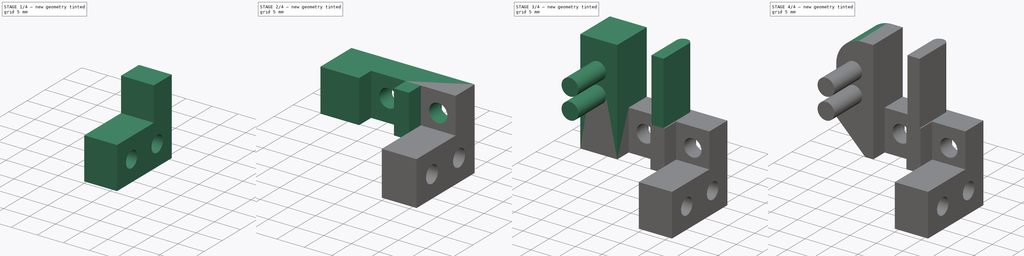
[diagram: build sequence overview — one tinted view per stage of 4, left to right]
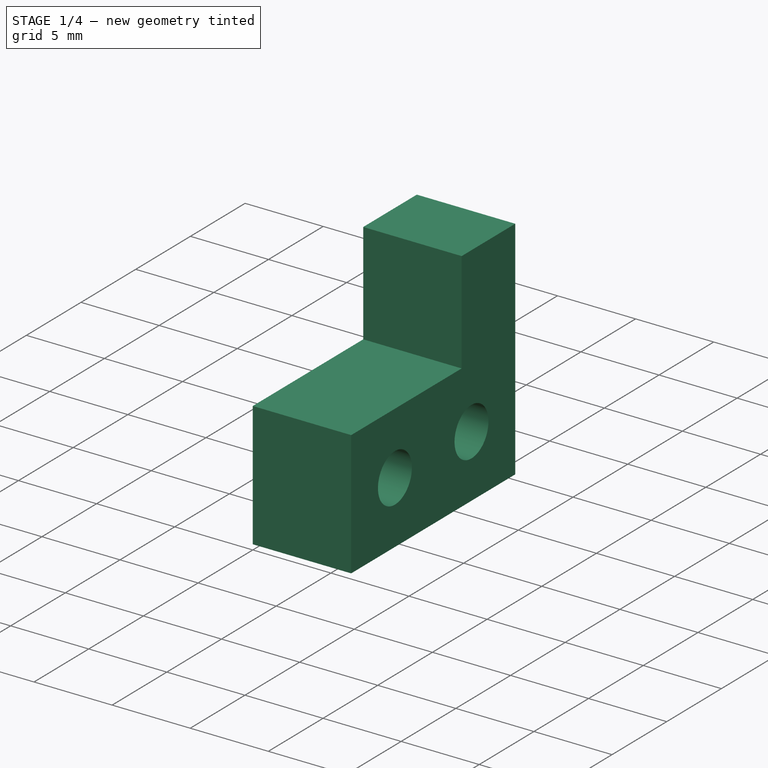
[diagram: stage 1 of 4 — iso view after this stage's code; geometry added in this stage tinted green]
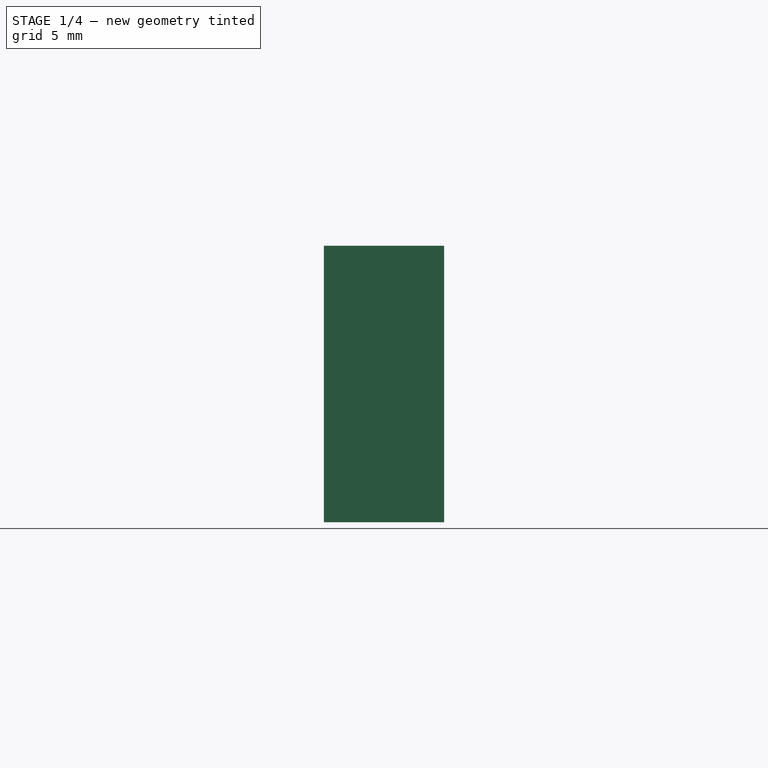
[diagram: stage 1 of 4 — front view after this stage's code; geometry added in this stage tinted green]
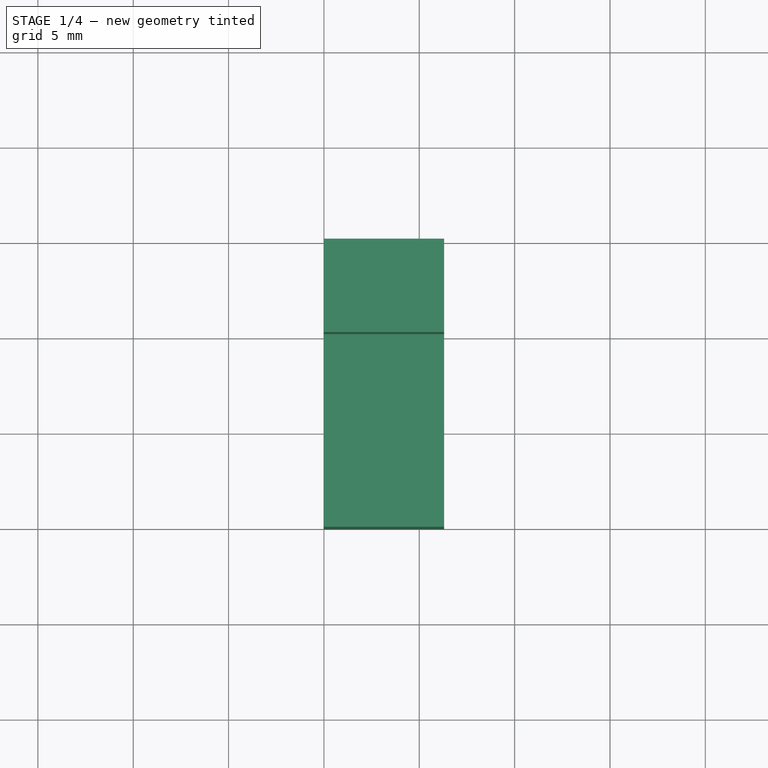
[diagram: stage 1 of 4 — top view after this stage's code; geometry added in this stage tinted green]
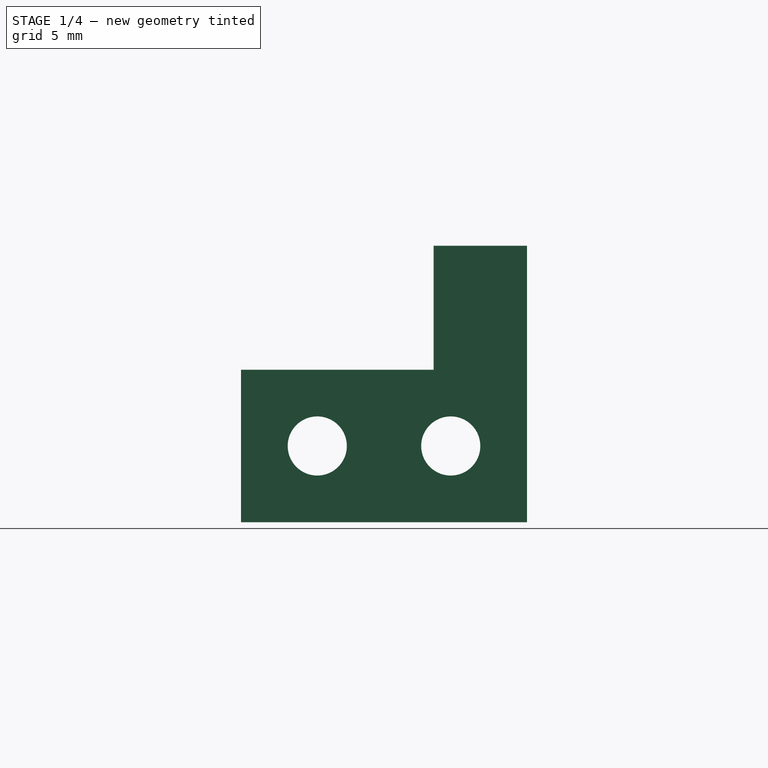
[diagram: stage 1 of 4 — right view after this stage's code; geometry added in this stage tinted green]
FCSTD DOCUMENT  (FreeCAD 0.19R24291 (Git))
Label: ri_sensor-support03
License: All rights reserved
LicenseURL: http://en.wikipedia.org/wiki/All_rights_reserved
objects: Sketcher::SketchObject×8, PartDesign::Pad×5, PartDesign::Pocket×3, PartDesign::Fillet×1, PartDesign::Chamfer×1, PartDesign::Body×1, App::Part×1
note: 29 computed .brp shape members not serialized (recipe doc carries the construction recipe); baked Part::Feature solids carry a one-line shape summary decoded from their .brp

FEATURE [Sketcher::SketchObject] Sketch  label="Baseplate-Sensor1"
  FullyConstrained = true
  MapMode = 5
  Placement = pos=(0,0,0) rot=(0.57735,0.57735,0.57735;2.0944rad)
  Support = -> [YZ_Plane001]
  expr: Constraints[12] = 8 - 3.1
  sketch-geometry (11):
    g0: LineSegment StartX=-4.9 StartY=-4.5 StartZ=0 EndX=0 EndY=-4.5 EndZ=0
    g1: LineSegment StartX=0 StartY=-4.5 StartZ=0 EndX=0 EndY=-19 EndZ=0
    g2: LineSegment StartX=0 StartY=-19 StartZ=0 EndX=-15 EndY=-19 EndZ=0
    g3: LineSegment StartX=-15 StartY=-19 StartZ=0 EndX=-15 EndY=-11 EndZ=0
    g4: LineSegment StartX=-15 StartY=-11 StartZ=0 EndX=-4.9 EndY=-11 EndZ=0
    g5: LineSegment StartX=-4.9 StartY=-11 StartZ=0 EndX=-4.9 EndY=-4.5 EndZ=0
    g6: Circle CenterX=-11 CenterY=-15 CenterZ=0 NormalX=0 NormalY=0 NormalZ=1 AngleXU=0 Radius=1.55
    g7: Circle CenterX=-4 CenterY=-15 CenterZ=0 NormalX=0 NormalY=0 NormalZ=1 AngleXU=0 Radius=1.55
    g8: GeomPoint X=-7.5 Y=-15 Z=0
    g9: GeomPoint X=-15 Y=-15 Z=0
    g10: GeomPoint X=-7.5 Y=-19 Z=0
  constraints (27):
    c: Horizontal(g0)
    c: Coincident(g0,g1)
    c: Vertical(g1)
    c: Coincident(g1,g2)
    c: Horizontal(g2)
    c: Coincident(g2,g3)
    c: Vertical(g3)
    c: Coincident(g3,g4)
    c: Coincident(g4,g5)
    c: Coincident(g5,g0)
    c: Vertical(g5)
    c: Horizontal(g4)
    c: DistanceX(g0,g0) = 4.9
    c: DistanceX(g2,g2) = 15
    c: DistanceY(g3,g3) = 8
    c: Equal(g6,g7)
    c: Diameter(g7) = 3.1
    c: DistanceX(g6,g7) = 7
    c: Symmetric(g6,g7,g8)
    c: Symmetric(g3,g2,g9)
    c: Symmetric(g2,g1,g10)
    c: Horizontal(g6,g7)
    c: Horizontal(g8,g9)
    c: Vertical(g8,g10)
    c: DistanceY(g8,g-1) = 15
    c: Vertical(g0,g-1)
    c: DistanceY(g5,g5) = 6.5
FEATURE [PartDesign::Pad] Pad
  Direction = (1,1,1)
  Length = 6.3
  Length2 = 100
  Placement = pos=(0,0,0) rot=(0.57735,0.57735,0.57735;2.0944rad)
  Profile = -> Sketch
  Refine = true
  Type = 0
FEATURE [Sketcher::SketchObject] Sketch002  label="Baseplate_Nuts"
  ExternalGeometry = -> [Pad]
  FullyConstrained = true
  MapMode = 5
  Placement = pos=(4.3e-15,0,0) rot=(0.57735,0.57735,-0.57735;4.18879rad)
  Support = -> [Pad]
  sketch-geometry (8):
    g0: LineSegment StartX=-8.2 StartY=12.2 StartZ=0 EndX=-13.8 EndY=12.2 EndZ=0
    g1: LineSegment StartX=-13.8 StartY=12.2 StartZ=0 EndX=-13.8 EndY=17.8 EndZ=0
    g2: LineSegment StartX=-13.8 StartY=17.8 StartZ=0 EndX=-8.2 EndY=17.8 EndZ=0
    g3: LineSegment StartX=-8.2 StartY=17.8 StartZ=0 EndX=-8.2 EndY=12.2 EndZ=0
    g4: LineSegment StartX=-1.2 StartY=12.2 StartZ=0 EndX=-6.8 EndY=12.2 EndZ=0
    g5: LineSegment StartX=-6.8 StartY=12.2 StartZ=0 EndX=-6.8 EndY=17.8 EndZ=0
    g6: LineSegment StartX=-6.8 StartY=17.8 StartZ=0 EndX=-1.2 EndY=17.8 EndZ=0
    g7: LineSegment StartX=-1.2 StartY=17.8 StartZ=0 EndX=-1.2 EndY=12.2 EndZ=0
  constraints (22):
    c: Coincident(g0,g1)
    c: Coincident(g1,g2)
    c: Coincident(g2,g3)
    c: Coincident(g3,g0)
    c: Horizontal(g0)
    c: Horizontal(g2)
    c: Vertical(g1)
    c: Vertical(g3)
    c: Coincident(g4,g5)
    c: Coincident(g5,g6)
    c: Coincident(g6,g7)
    c: Coincident(g7,g4)
    c: Horizontal(g4)
    c: Horizontal(g6)
    c: Vertical(g5)
    c: Vertical(g7)
    c: Equal(g0,g3)
    c: Equal(g4,g7)
    c: Equal(g4,g0)
    c: Symmetric(g2,g0,g-4)
    c: Symmetric(g6,g4,g-3)
    c: DistanceX(g4,g4) = 5.6
FEATURE [Sketcher::SketchObject] Sketch001  label="Sensor_Mounts"
  ExternalGeometry = -> [Pad]
  FullyConstrained = true
  MapMode = 5
  Placement = pos=(1.7e-15,-2.5e-15,-4.5) rot=(0,0,-1;1.5708rad)
  Support = -> [Pad]
  sketch-geometry (10):
    g0: LineSegment StartX=0 StartY=0 StartZ=0 EndX=0 EndY=-16 EndZ=0
    g1: LineSegment StartX=0 StartY=-16 StartZ=0 EndX=8 EndY=-16 EndZ=0
    g2: LineSegment StartX=8 StartY=-16 StartZ=0 EndX=8 EndY=-9 EndZ=0
    g3: LineSegment StartX=8 StartY=-9 StartZ=0 EndX=4.9 EndY=-9 EndZ=0
    g4: LineSegment StartX=4.9 StartY=-9 StartZ=0 EndX=4.9 EndY=-2.7 EndZ=0
    g5: LineSegment StartX=4.9 StartY=-2.7 StartZ=0 EndX=8 EndY=-2.7 EndZ=0
    g6: LineSegment StartX=8 StartY=-2.7 StartZ=0 EndX=8 EndY=0 EndZ=0
    g7: LineSegment StartX=8 StartY=0 StartZ=0 EndX=0 EndY=0 EndZ=0
    g8: GeomPoint X=4.9 Y=3.15 Z=0
    g9: GeomPoint X=4.9 Y=-5.85 Z=0
  constraints (23):
    c: Coincident(g-1,g0)
    c: PointOnObject(g0,g-2)
    c: Coincident(g0,g1)
    c: Horizontal(g1)
    c: Coincident(g1,g2)
    c: Vertical(g2)
    c: Coincident(g2,g3)
    c: Horizontal(g3)
    c: Coincident(g3,g4)
    c: Coincident(g4,g5)
    c: Horizontal(g5)
    c: Coincident(g5,g6)
    c: PointOnObject(g6,g-1)
    c: Coincident(g6,g7)
    c: Coincident(g7,g0)
    c: Equal(g-4,g4)
    c: Tangent(g6,g2)
    c: Tangent(g4,g-4)
    c: DistanceY(g2,g2) = 7
    c: Symmetric(g-5,g-4,g8)
    c: Symmetric(g4,g3,g9)
    c: DistanceY(g9,g8) = 9
    c: DistanceX(g5,g5) = 3.1
FEATURE [PartDesign::Pocket] Pocket
  BaseFeature = -> Pad
  Length = 2
  Length2 = 100
  Placement = pos=(0,0,0) rot=(0.57735,0.57735,0.57735;2.0944rad)
  Profile = -> Sketch002
  Refine = true
  Type = 0
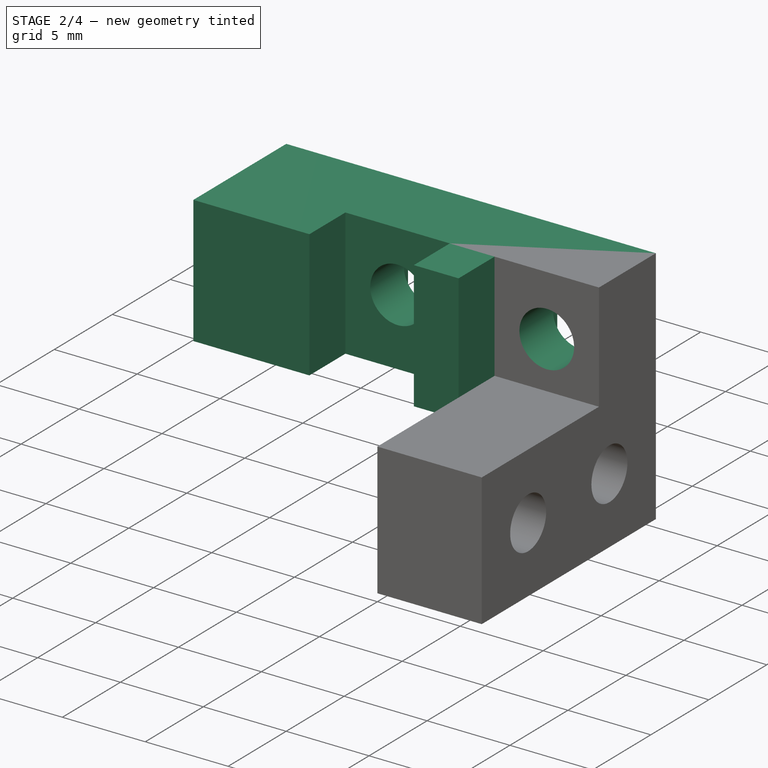
[diagram: stage 2 of 4 — iso view after this stage's code; geometry added in this stage tinted green]
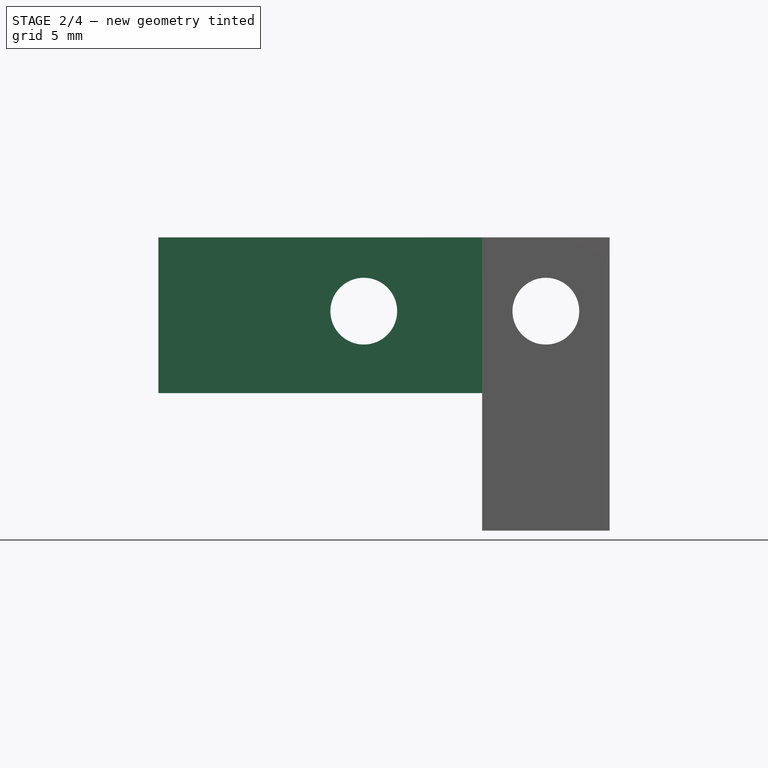
[diagram: stage 2 of 4 — front view after this stage's code; geometry added in this stage tinted green]
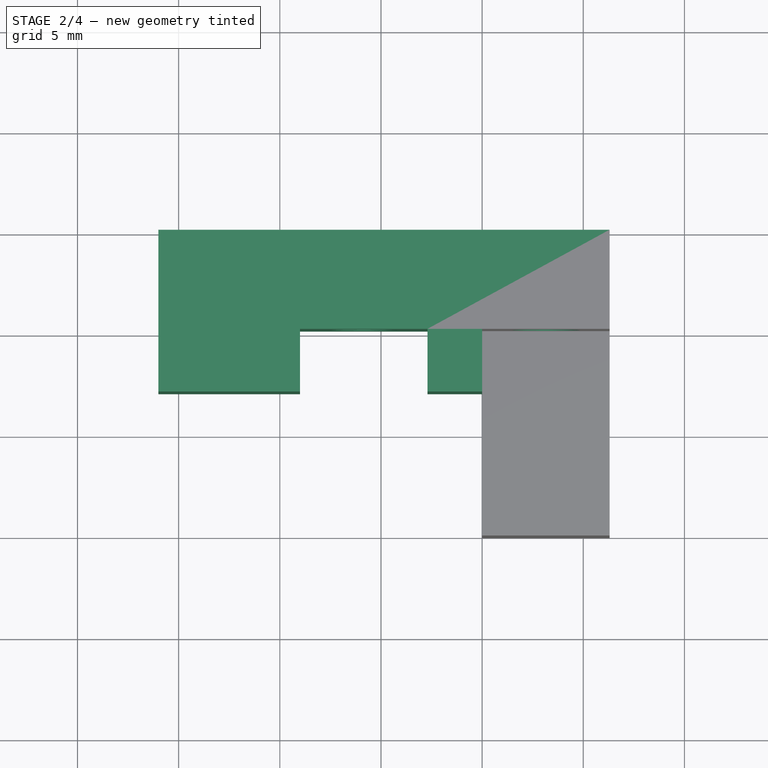
[diagram: stage 2 of 4 — top view after this stage's code; geometry added in this stage tinted green]
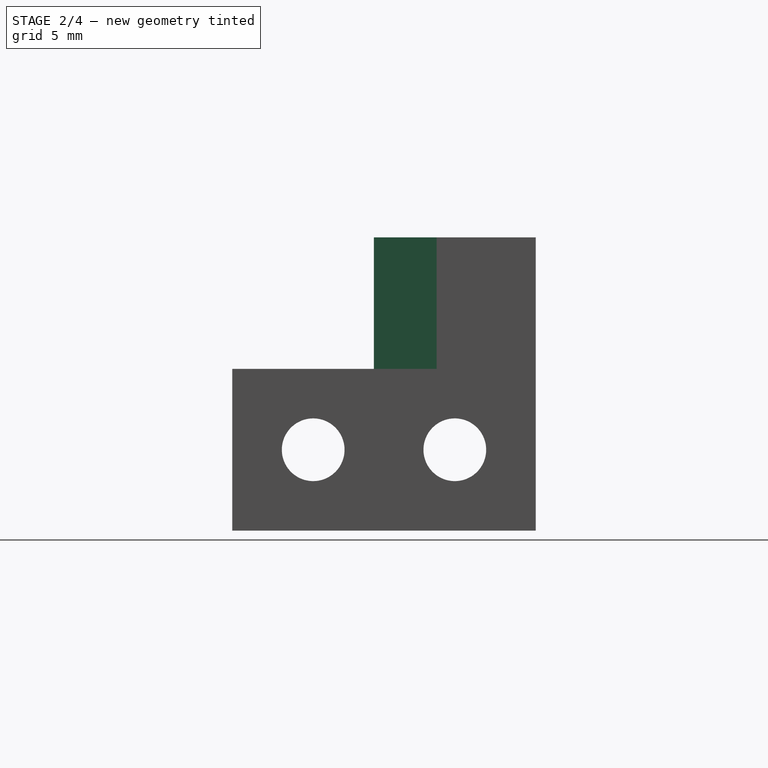
[diagram: stage 2 of 4 — right view after this stage's code; geometry added in this stage tinted green]
FEATURE [PartDesign::Pad] Pad001
  BaseFeature = -> Pocket
  Direction = (1,1,1)
  Length = 10
  Length2 = 100
  Placement = pos=(0,0,0) rot=(0.57735,0.57735,0.57735;2.0944rad)
  Profile = -> Sketch001
  Refine = true
  Type = 3
  UpToFace = -> Pocket [Face12]
FEATURE [Sketcher::SketchObject] Sketch003  label="Sensor_Holes"
  ExternalGeometry = -> [Pad001]
  FullyConstrained = true
  MapMode = 5
  Placement = pos=(-2.2e-15,-4.9,4.9e-15) rot=(0.57735,0.57735,-0.57735;2.0944rad)
  Support = -> [Pad001]
  expr: Constraints[6] = (24.6 - 18.9) / 2
  sketch-geometry (4):
    g0: Circle CenterX=8.15 CenterY=-5.85 CenterZ=0 NormalX=0 NormalY=0 NormalZ=1 AngleXU=0 Radius=1.65
    g1: Circle CenterX=8.15 CenterY=3.15 CenterZ=0 NormalX=0 NormalY=0 NormalZ=1 AngleXU=0 Radius=1.65
    g2: GeomPoint X=4.5 Y=-5.85 Z=0
    g3: GeomPoint X=4.5 Y=3.15 Z=0
  constraints (8):
    c: Equal(g0,g1)
    c: Vertical(g1,g0)
    c: Symmetric(g-4,g-9,g2)
    c: Symmetric(g-6,g-7,g3)
    c: Horizontal(g2,g0)
    c: Horizontal(g3,g1)
    c: DistanceX(g1,g-8) = 2.85
    c: Diameter(g1) = 3.3
FEATURE [PartDesign::Pocket] Pocket001
  BaseFeature = -> Pad001
  Length = 5
  Length2 = 100
  Placement = pos=(0,0,0) rot=(0.57735,0.57735,0.57735;2.0944rad)
  Profile = -> Sketch003
  Refine = true
  Type = 1
FEATURE [Sketcher::SketchObject] Sketch004
  ExternalGeometry = -> [Pocket001]
  FullyConstrained = true
  MapMode = 5
  Placement = pos=(0,1.7e-15,0) rot=(0.57735,0.57735,0.57735;4.18879rad)
  Support = -> [Pocket001]
  sketch-geometry (8):
    g0: LineSegment StartX=-10.95 StartY=5.95 StartZ=0 EndX=-5.35 EndY=5.95 EndZ=0
    g1: LineSegment StartX=-5.35 StartY=5.95 StartZ=0 EndX=-5.35 EndY=0.35 EndZ=0
    g2: LineSegment StartX=-5.35 StartY=0.35 StartZ=0 EndX=-10.95 EndY=0.35 EndZ=0
    g3: LineSegment StartX=-10.95 StartY=0.35 StartZ=0 EndX=-10.95 EndY=5.95 EndZ=0
    g4: LineSegment StartX=-10.95 StartY=-3.05 StartZ=0 EndX=-5.35 EndY=-3.05 EndZ=0
    g5: LineSegment StartX=-5.35 StartY=-3.05 StartZ=0 EndX=-5.35 EndY=-8.65 EndZ=0
    g6: LineSegment StartX=-5.35 StartY=-8.65 StartZ=0 EndX=-10.95 EndY=-8.65 EndZ=0
    g7: LineSegment StartX=-10.95 StartY=-8.65 StartZ=0 EndX=-10.95 EndY=-3.05 EndZ=0
  constraints (22):
    c: Coincident(g0,g1)
    c: Coincident(g1,g2)
    c: Coincident(g2,g3)
    c: Coincident(g3,g0)
    c: Horizontal(g0)
    c: Horizontal(g2)
    c: Vertical(g1)
    c: Vertical(g3)
    c: Coincident(g4,g5)
    c: Coincident(g5,g6)
    c: Coincident(g6,g7)
    c: Coincident(g7,g4)
    c: Horizontal(g4)
    c: Horizontal(g6)
    c: Vertical(g5)
    c: Vertical(g7)
    c: Equal(g0,g3)
    c: Equal(g4,g7)
    c: Equal(g1,g5)
    c: DistanceY(g5,g5) = 5.6
    c: Symmetric(g2,g0,g-3)
    c: Symmetric(g6,g4,g-4)
FEATURE [PartDesign::Pocket] Pocket002
  BaseFeature = -> Pocket001
  Length = 2
  Length2 = 100
  Placement = pos=(0,0,0) rot=(0.57735,0.57735,0.57735;2.0944rad)
  Profile = -> Sketch004
  Refine = true
  Type = 0
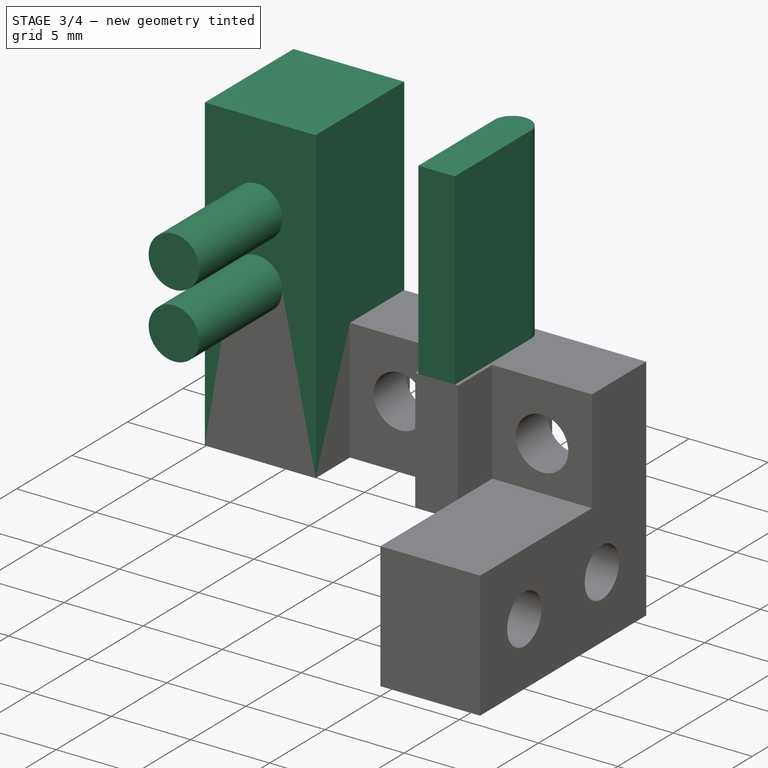
[diagram: stage 3 of 4 — iso view after this stage's code; geometry added in this stage tinted green]
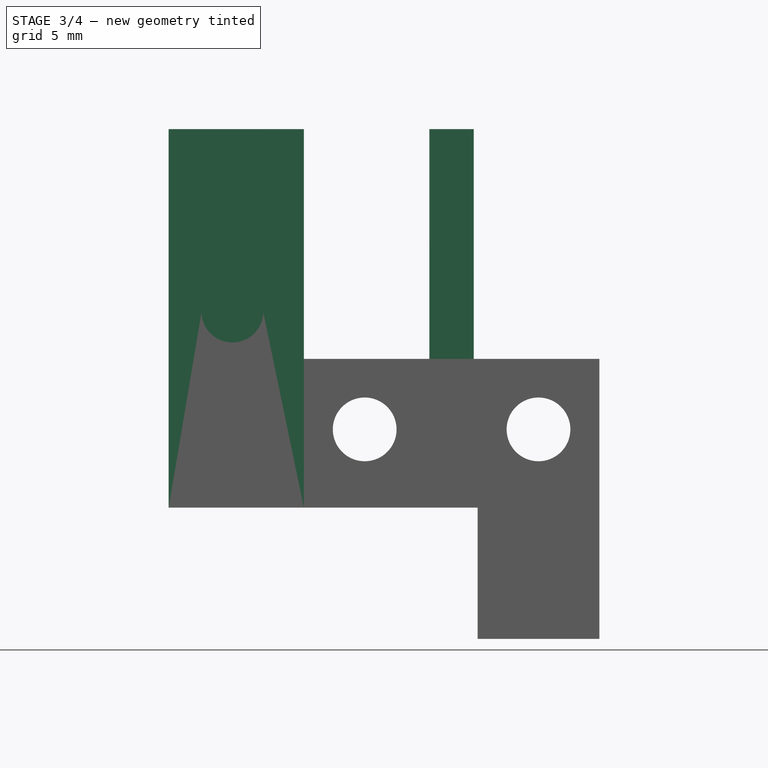
[diagram: stage 3 of 4 — front view after this stage's code; geometry added in this stage tinted green]
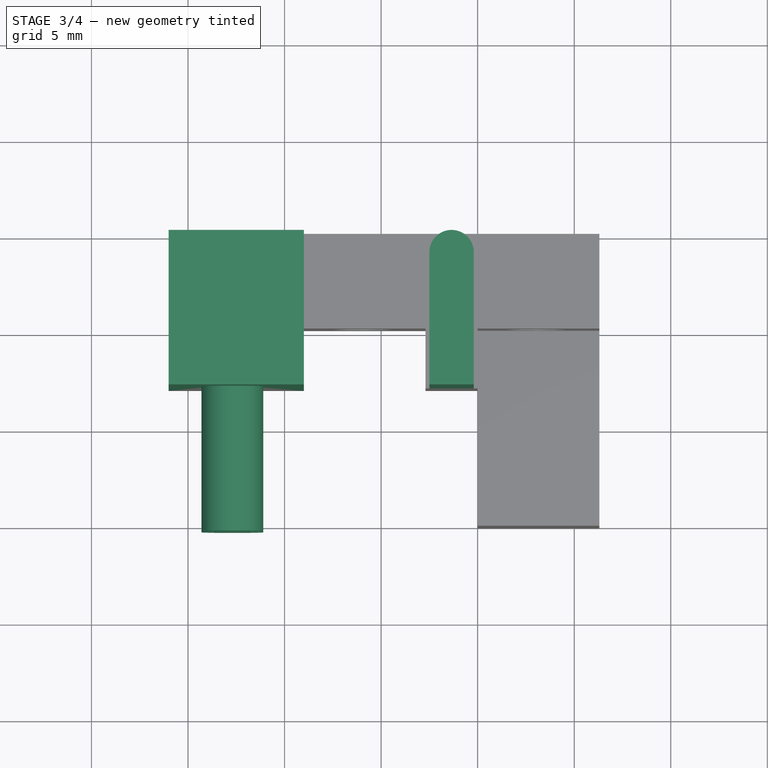
[diagram: stage 3 of 4 — top view after this stage's code; geometry added in this stage tinted green]
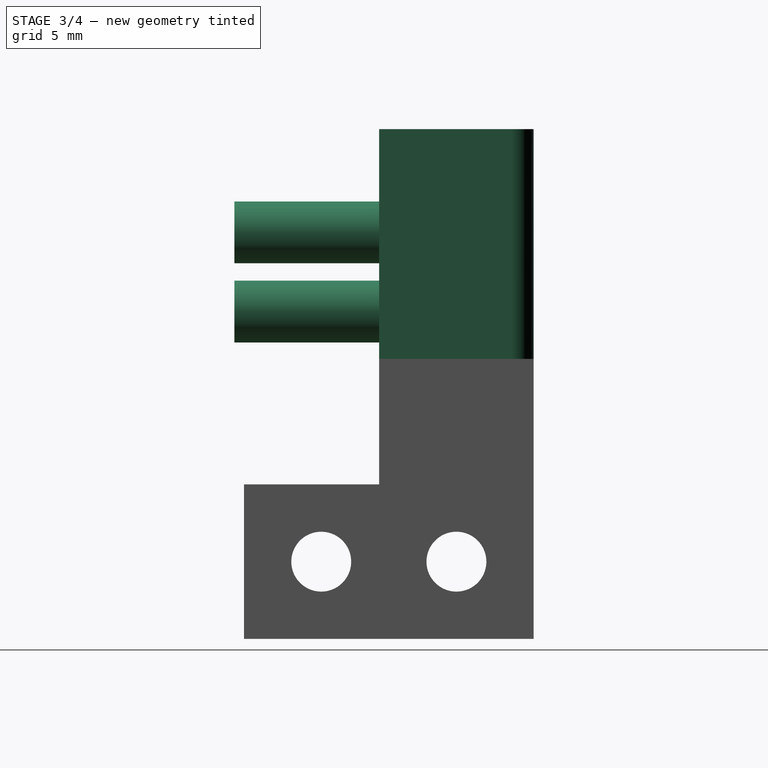
[diagram: stage 3 of 4 — right view after this stage's code; geometry added in this stage tinted green]
FEATURE [Sketcher::SketchObject] Sketch005  label="Tube_Base"
  ExternalGeometry = -> [Pocket002]
  FullyConstrained = true
  MapMode = 5
  Placement = pos=(5.4e-15,-5.1e-15,-4.5) rot=(0,0,-1;1.5708rad)
  Support = -> [Pocket002]
  sketch-geometry (4):
    g0: LineSegment StartX=-1.24e-14 StartY=-16 StartZ=0 EndX=8 EndY=-16 EndZ=0
    g1: LineSegment StartX=8 StartY=-16 StartZ=0 EndX=8 EndY=-9 EndZ=0
    g2: LineSegment StartX=8 StartY=-9 StartZ=0 EndX=-1.24e-14 EndY=-9 EndZ=0
    g3: LineSegment StartX=-1.24e-14 StartY=-9 StartZ=0 EndX=-1.24e-14 EndY=-16 EndZ=0
  constraints (10):
    c: Coincident(g0,g1)
    c: Coincident(g1,g2)
    c: Coincident(g2,g3)
    c: Coincident(g3,g0)
    c: Horizontal(g0)
    c: Horizontal(g2)
    c: Vertical(g1)
    c: Vertical(g3)
    c: Coincident(g0,g-3)
    c: Coincident(g1,g-5)
FEATURE [PartDesign::Pad] Pad002
  BaseFeature = -> Pocket002
  Direction = (1,1,1)
  Length = 11.9
  Length2 = 100
  Placement = pos=(0,0,0) rot=(0.57735,0.57735,0.57735;2.0944rad)
  Profile = -> Sketch005
  Refine = true
  Type = 0
FEATURE [Sketcher::SketchObject] Sketch006  label="Tube_Holders"
  ExternalGeometry = -> [Pad002]
  FullyConstrained = true
  MapMode = 5
  Placement = pos=(-6.6e-15,-8,8.5e-15) rot=(0.57735,0.57735,-0.57735;2.0944rad)
  Support = -> [Pad002]
  sketch-geometry (3):
    g0: Circle CenterX=-2.05 CenterY=-12.7 CenterZ=0 NormalX=0 NormalY=0 NormalZ=1 AngleXU=0 Radius=1.6
    g1: Circle CenterX=2.05 CenterY=-12.7 CenterZ=0 NormalX=0 NormalY=0 NormalZ=1 AngleXU=0 Radius=1.6
    g2: GeomPoint X=0 Y=-12.7 Z=0
  constraints (7):
    c: Equal(g1,g0)
    c: Diameter(g1) = 3.2
    c: Horizontal(g0,g1)
    c: DistanceX(g0,g1) = 4.1
    c: PointOnObject(g2,g-2)
    c: Symmetric(g0,g1,g2)
    c: DistanceY(g2,g-3) = 19
FEATURE [PartDesign::Pad] Pad003
  BaseFeature = -> Pad002
  Direction = (1,1,1)
  Length = 7.5
  Length2 = 100
  Placement = pos=(0,0,0) rot=(0.57735,0.57735,0.57735;2.0944rad)
  Profile = -> Sketch006
  Refine = true
  Type = 0
FEATURE [Sketcher::SketchObject] Sketch007  label="seperator"
  ExternalGeometry = -> [Pad003]
  FullyConstrained = true
  MapMode = 5
  Placement = pos=(1.9e-15,-3.8e-15,-4.5) rot=(0,0,-1;1.5708rad)
  sketch-geometry (6):
    g0: GeomPoint X=8 Y=-1.35 Z=0
    g1: LineSegment StartX=8 StartY=-2.5 StartZ=0 EndX=1.15 EndY=-2.5 EndZ=0
    g2: LineSegment StartX=1.15 StartY=-0.2 StartZ=0 EndX=8 EndY=-0.2 EndZ=0
    g3: LineSegment StartX=8 StartY=-0.2 StartZ=0 EndX=8 EndY=-2.5 EndZ=0
    g4: ArcOfCircle CenterX=1.15 CenterY=-1.35 CenterZ=0 NormalX=0 NormalY=0 NormalZ=1 AngleXU=0 Radius=1.15 StartAngle=1.5708 EndAngle=4.71239
    g5: GeomPoint X=0 Y=-1.35 Z=0
  constraints (15):
    c: Coincident(g2,g3)
    c: Coincident(g3,g1)
    c: Horizontal(g1)
    c: Horizontal(g2)
    c: Vertical(g3)
    c: Symmetric(g2,g1,g0)
    c: Coincident(g4,g1)
    c: Coincident(g4,g2)
    c: PointOnObject(g5,g4)
    c: Vertical(g5,g-1)
    c: Symmetric(g-4,g-5,g0)
    c: Horizontal(g0,g4)
    c: DistanceY(g2,g-4) = 0.2
    c: Horizontal(g4,g5)
    c: Vertical(g2,g1)
FEATURE [PartDesign::Pad] Pad004
  BaseFeature = -> Pad003
  Direction = (1,1,1)
  Length = 10
  Length2 = 100
  Placement = pos=(0,0,0) rot=(0.57735,0.57735,0.57735;2.0944rad)
  Profile = -> Sketch007
  Refine = true
  Type = 3
  UpToFace = -> Pad003 [Face13]
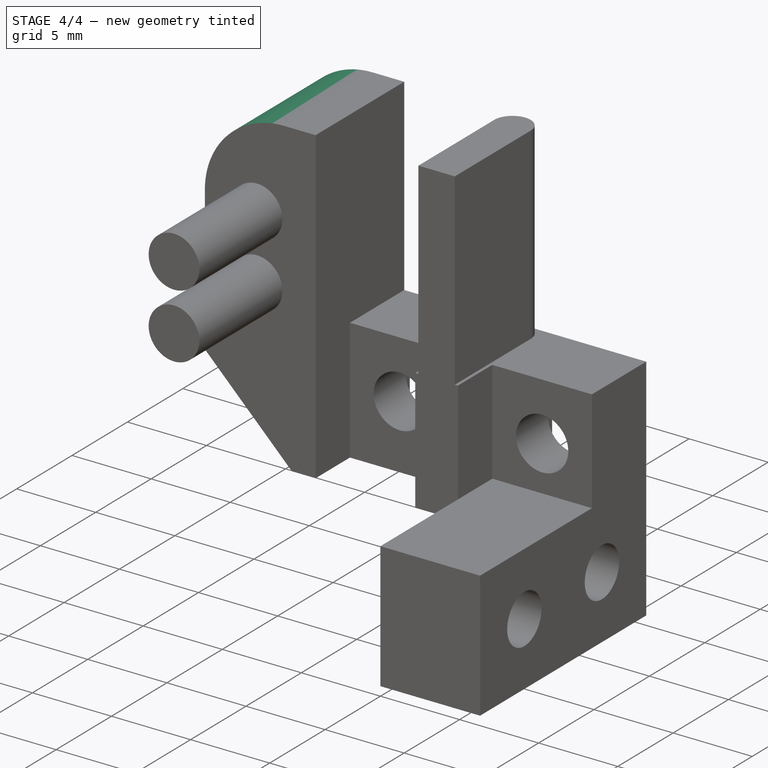
[diagram: stage 4 of 4 — iso view after this stage's code; geometry added in this stage tinted green]
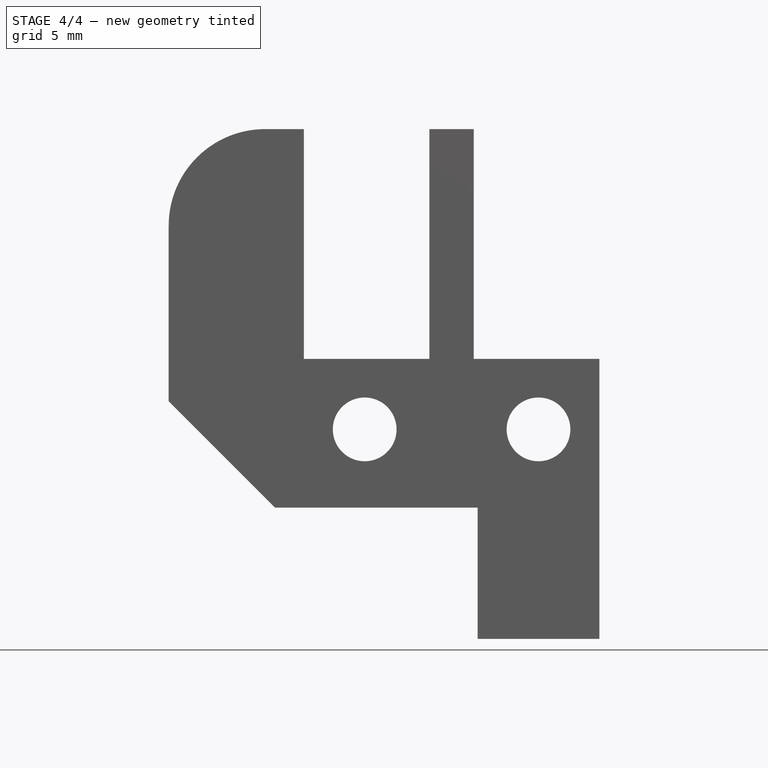
[diagram: stage 4 of 4 — front view after this stage's code; geometry added in this stage tinted green]
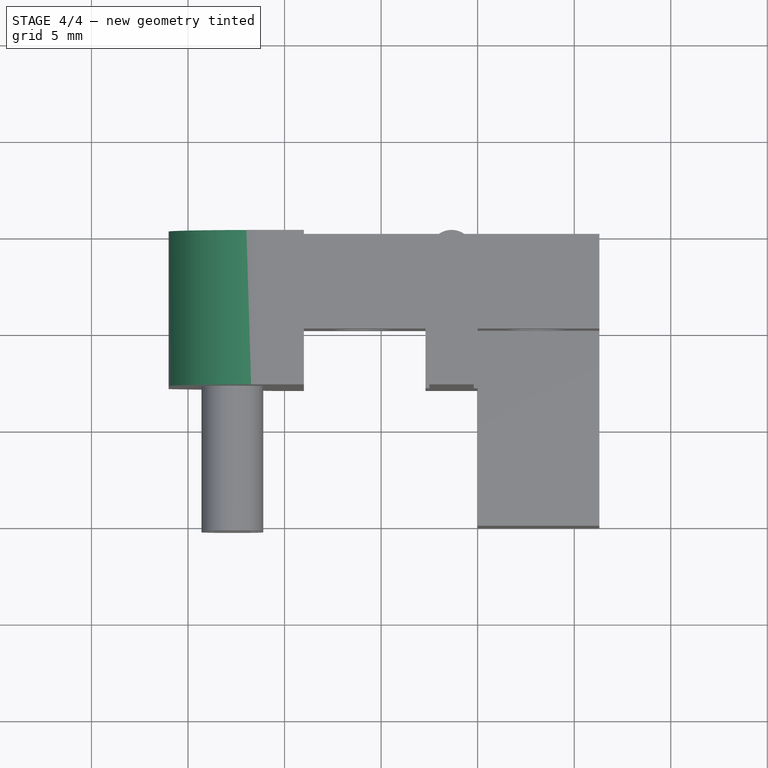
[diagram: stage 4 of 4 — top view after this stage's code; geometry added in this stage tinted green]
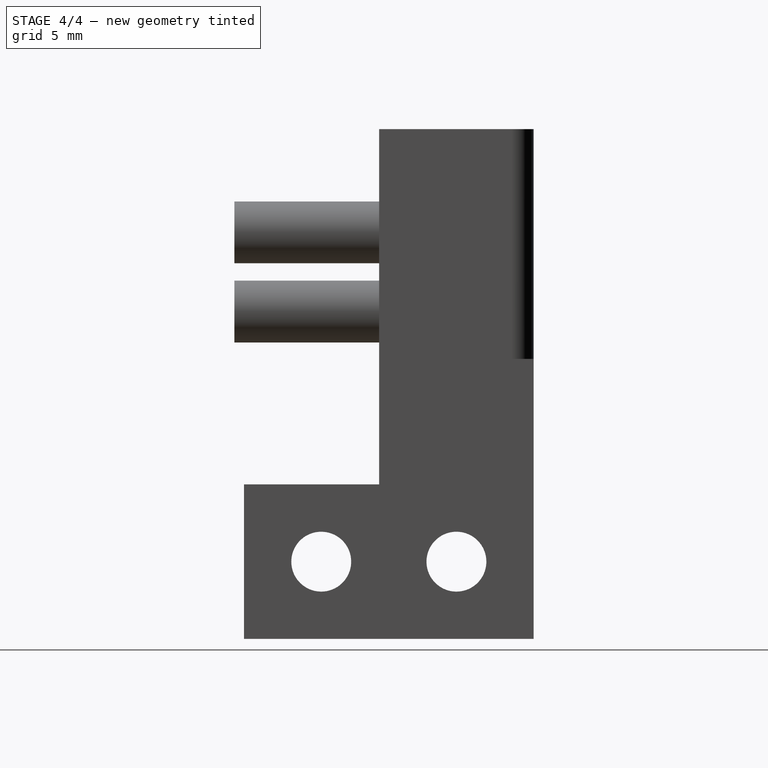
[diagram: stage 4 of 4 — right view after this stage's code; geometry added in this stage tinted green]
FEATURE [PartDesign::Fillet] Fillet
  Base = -> Pad004 [Edge69]
  BaseFeature = -> Pad004
  Placement = pos=(0,0,0) rot=(0.57735,0.57735,0.57735;2.0944rad)
  Radius = 5
  Refine = true
  SupportTransform = false
FEATURE [PartDesign::Chamfer] Chamfer
  Angle = 45
  Base = -> Fillet [Edge21]
  BaseFeature = -> Fillet
  ChamferType = 0
  FlipDirection = false
  Placement = pos=(0,0,0) rot=(0.57735,0.57735,0.57735;2.0944rad)
  Refine = true
  Size = 5.5
  Size2 = 1
  SupportTransform = false
FEATURE [PartDesign::Body] Body
  Group = -> [Sketch,Pad,Sketch001,Sketch002,Pocket,Pad001,Sketch003,Pocket001,Sketch004,Pocket002,Sketch005,Pad002,Sketch006,Sketch007,Pad003,Pad004,Fillet,Chamfer]
  Origin = -> Origin001
  Tip = -> Chamfer
FEATURE [App::Part] Part
  Group = -> [Body]
  Origin = -> Origin
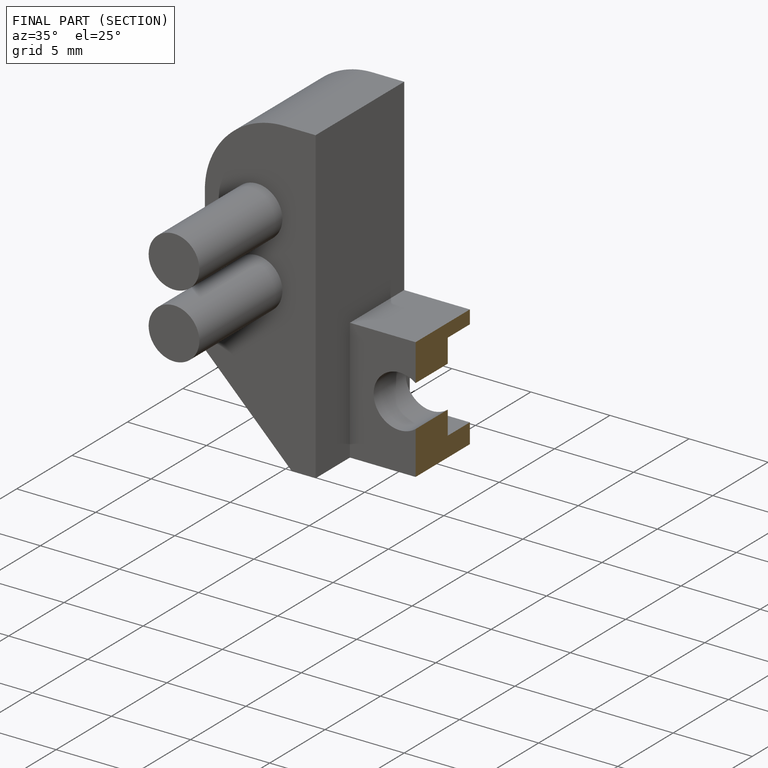
[diagram: finished part — half-section view (interior)]
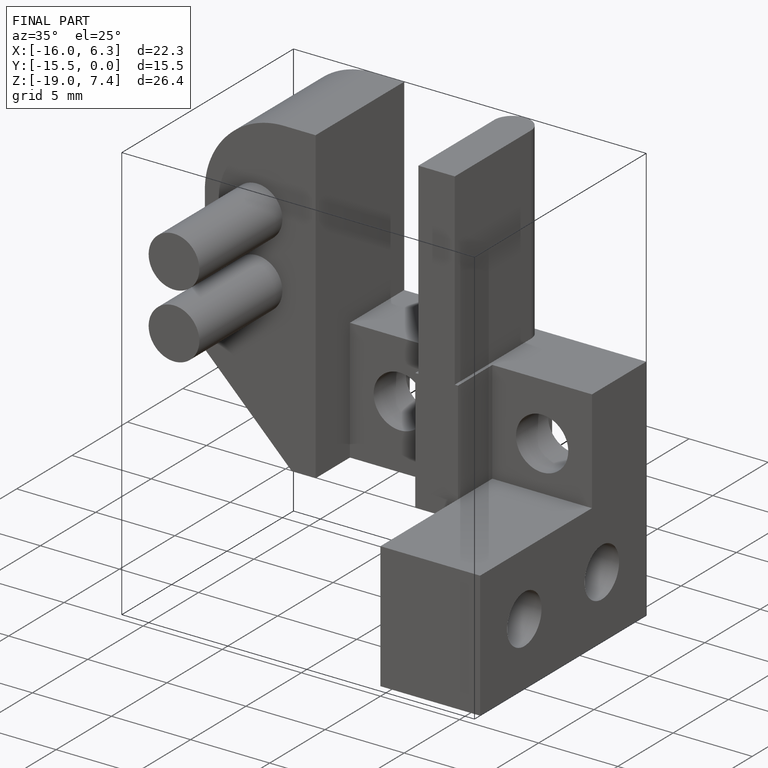
[diagram: finished part — iso view with bounding-box wireframe]
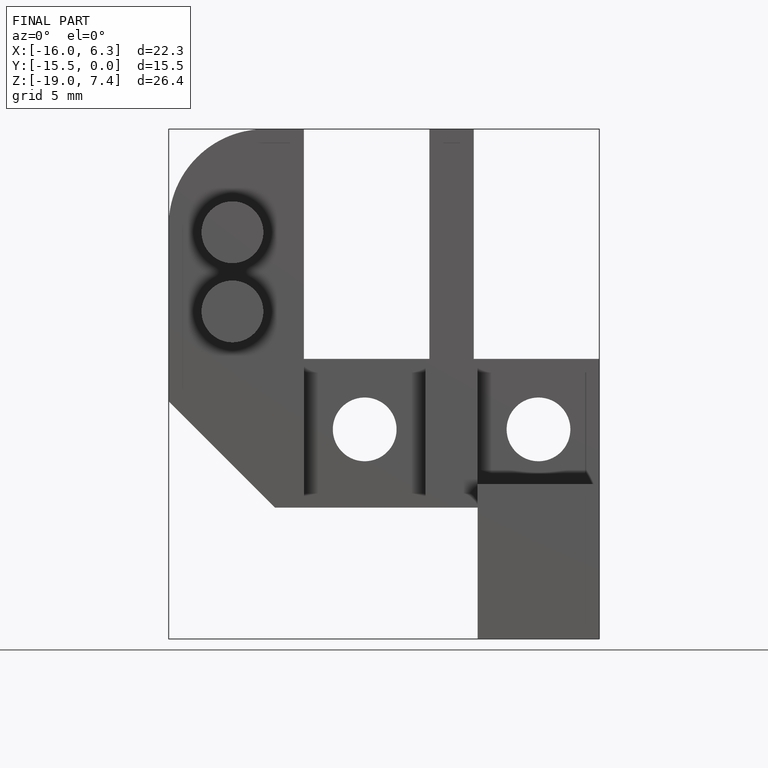
[diagram: finished part — front view with bounding-box wireframe]
